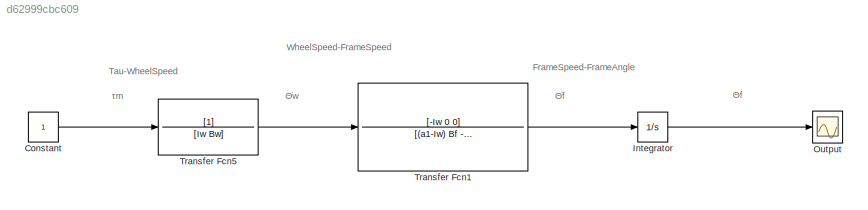
MODEL slx_d62999cbc609
KIND model
CONFIG AbsTol = auto
CONFIG EnableMultiTasking = off
CONFIG FixedStep = auto
CONFIG MaxStep = auto
CONFIG MinStep = auto
CONFIG RelTol = 1e-3
CONFIG SampleTimeConstraint = Unconstrained
CONFIG SolverName = VariableStepAuto
CONFIG StartTime = 0.0
CONFIG StopTime = 10.0
BLOCK [Constant] Constant
BLOCK [Integrator] Integrator
BLOCK [Scope] Output
  Floating = off
  NumInputPorts = 1
  ScopeSpecificationString = Simulink.scopes.TimeScopeBlockCfg('CurrentConfiguration', extmgr.ConfigurationSet(extmgr.Configuration('Core','General UI',true),extmgr.Configuration('Core','Source UI',true),extmgr.Configuration('Sources','WiredSimulink',true,'DataLoggingVariableName','ScopeData2'),extmgr.Configuration('Visuals','Time Domain',true,'SerializedDisplays',{struct('MinYLimReal','-18312257134338621340111084075588488527...<+1790ch>
BLOCK [TransferFcn] Transfer Fcn1
  Denominator = [(a1-Iw) Bf -a2]
  Numerator = [-Iw 0 0]
BLOCK [TransferFcn] Transfer Fcn5
  Denominator = [Iw Bw]
ANNOTATION (root): Θ f
ANNOTATION (root): Θ̇ f
ANNOTATION (root): Θ̇ w
ANNOTATION (root): τ m
ANNOTATION (root): FrameSpeed-FrameAngle
ANNOTATION (root): Tau-WheelSpeed
ANNOTATION (root): WheelSpeed-FrameSpeed
LINE Constant:1 -> Transfer Fcn5:1
LINE Integrator:1 -> Output:1
LINE Transfer Fcn1:1 -> Integrator:1
LINE Transfer Fcn5:1 -> Transfer Fcn1:1
